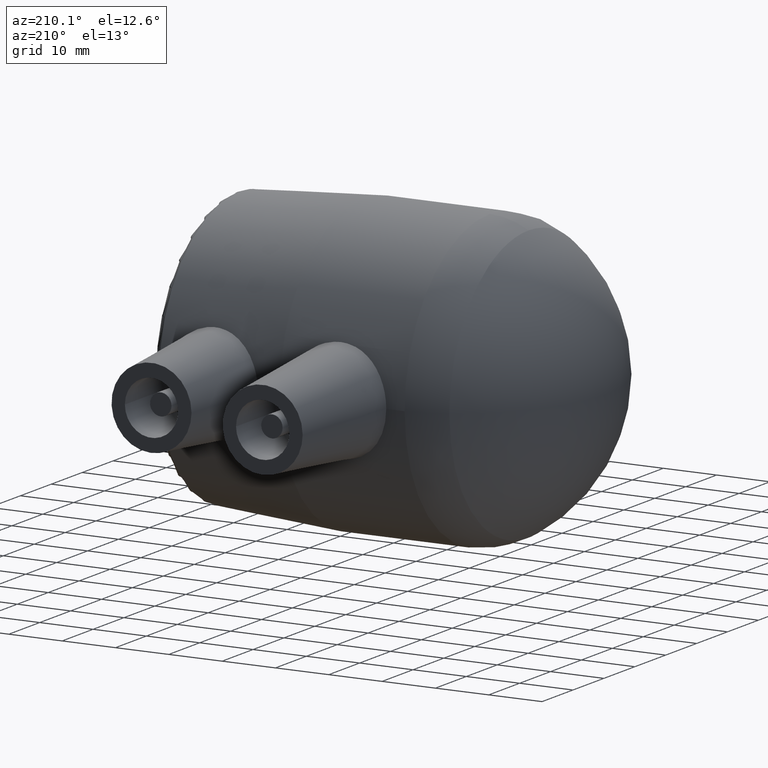
[diagram: clean part render]
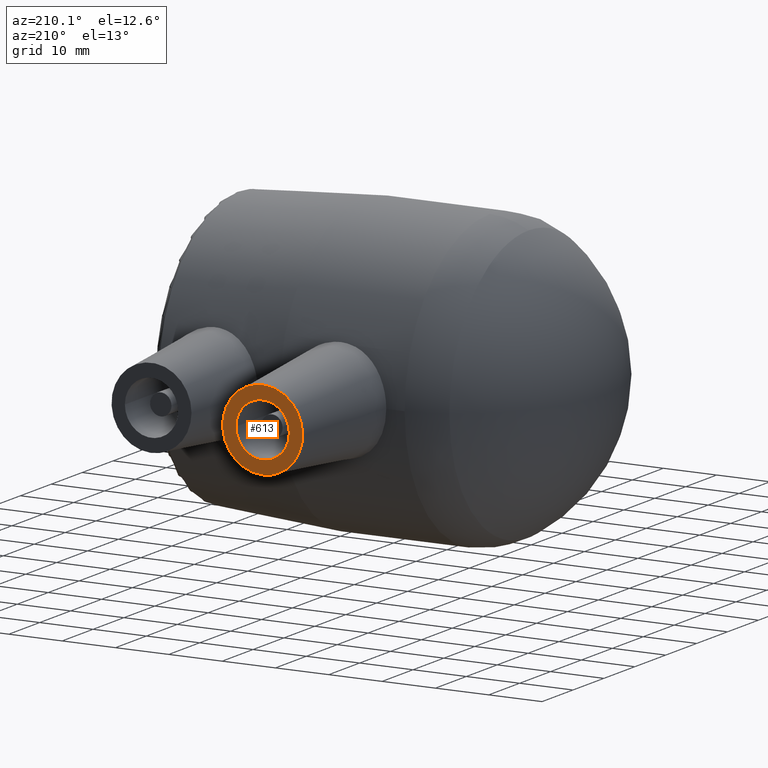
[diagram: same view with one face highlighted and labeled with its STEP entity id]
A machine part, auxiliary view. The second image highlights one B-rep face of the part: STEP entity #613.
In plain terms, the highlighted planar face has unit normal (0, 1, 0).
Its self-contained STEP definition (entity closure, byte-faithful):
#28=FACE_BOUND('',#192,.T.);
#139=FACE_OUTER_BOUND('',#191,.T.);
#191=EDGE_LOOP('',(#515));
#192=EDGE_LOOP('',(#516));
#253=CIRCLE('',#691,5.);
#254=CIRCLE('',#694,7.5);
#308=VERTEX_POINT('',#1111);
#309=VERTEX_POINT('',#1115);
#385=EDGE_CURVE('',#308,#308,#253,.T.);
#386=EDGE_CURVE('',#309,#309,#254,.T.);
#515=ORIENTED_EDGE('',*,*,#386,.F.);
#516=ORIENTED_EDGE('',*,*,#385,.T.);
#580=PLANE('',#693);
#613=ADVANCED_FACE('',(#139,#28),#580,.T.);
#691=AXIS2_PLACEMENT_3D('',#1112,#865,#866);
#693=AXIS2_PLACEMENT_3D('',#1114,#869,#870);
#694=AXIS2_PLACEMENT_3D('',#1116,#871,#872);
#865=DIRECTION('center_axis',(0.,-1.,0.));
#866=DIRECTION('ref_axis',(-1.,0.,0.));
#869=DIRECTION('center_axis',(0.,1.,0.));
#870=DIRECTION('ref_axis',(0.,0.,1.));
#871=DIRECTION('center_axis',(0.,-1.,0.));
#872=DIRECTION('ref_axis',(1.,0.,0.));
#1111=CARTESIAN_POINT('',(-30.,51.,-6.12323399573677E-16));
#1112=CARTESIAN_POINT('Origin',(-35.,51.,0.));
#1114=CARTESIAN_POINT('Origin',(-35.,51.,1.2335811384724E-16));
#1115=CARTESIAN_POINT('',(-42.5,51.,9.18485099360515E-16));
#1116=CARTESIAN_POINT('Origin',(-35.,51.,0.));